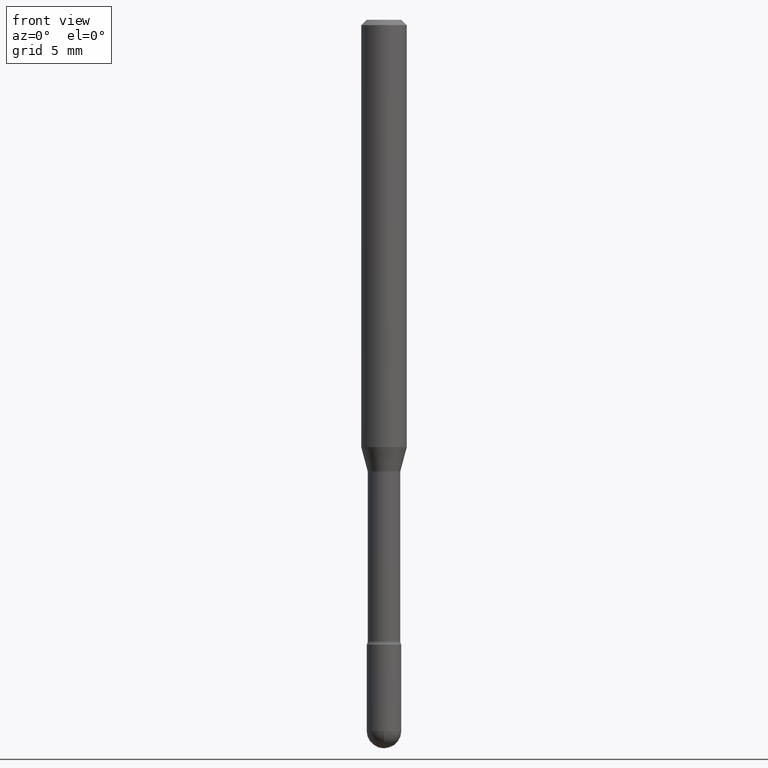
[diagram: clean part render]
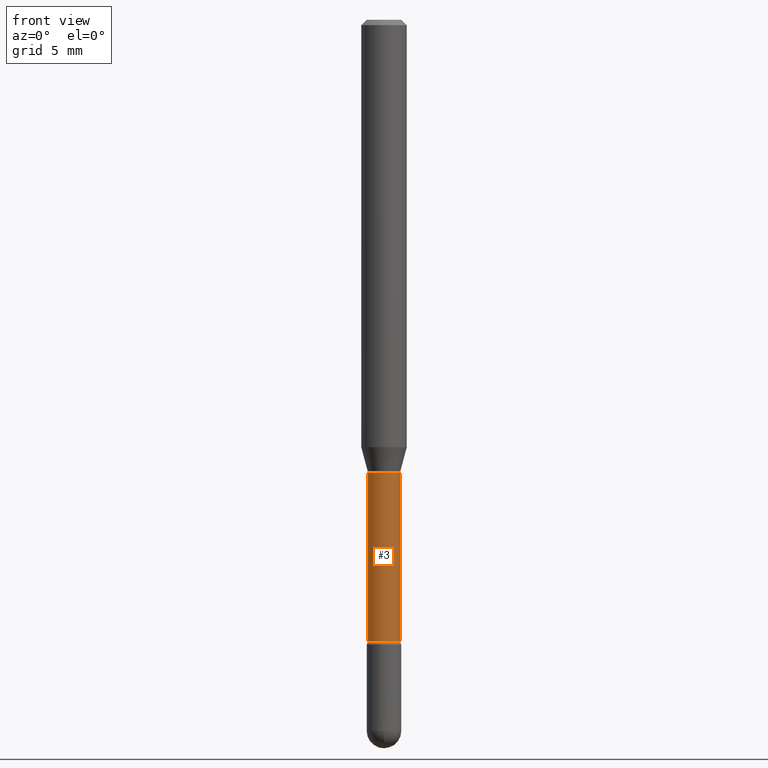
[diagram: same view with one face highlighted and labeled with its STEP entity id]
A machine part, front view. The second image highlights one B-rep face of the part: STEP entity #3.
In plain terms, the highlighted cylindrical surface (edge-blend (fillet) strip) has radius 1.1341 mm, axis along (-0, 0, 1).
Its self-contained STEP definition (entity closure, byte-faithful):
#3 = ADVANCED_FACE ( 'NONE', ( #472 ), #211, .T. ) ;
#15 = DIRECTION ( 'NONE',  ( -2.445468806185136877E-29, 3.491481338843145188E-15, 1.000000000000000000 ) ) ;
#25 = VERTEX_POINT ( 'NONE', #342 ) ;
#36 = VECTOR ( 'NONE', #460, 39.37007874015748143 ) ;
#37 = CARTESIAN_POINT ( 'NONE',  ( 3.037210600811164574E-29, -4.336331793743577757E-15, -1.241974787463810959 ) ) ;
#44 = LINE ( 'NONE', #200, #79 ) ;
#66 = ORIENTED_EDGE ( 'NONE', *, *, #250, .T. ) ;
#79 = VECTOR ( 'NONE', #15, 39.37007874015748143 ) ;
#82 = CIRCLE ( 'NONE', #565, 0.04465000000000005076 ) ;
#85 = CARTESIAN_POINT ( 'NONE',  ( -0.04464999999999999525, -4.829497496136509285E-15, -1.241974787463810959 ) ) ;
#90 = ORIENTED_EDGE ( 'NONE', *, *, #349, .F. ) ;
#134 = DIRECTION ( 'NONE',  ( -2.445468806185136597E-29, 3.491481338843145583E-15, 1.000000000000000000 ) ) ;
#140 = VERTEX_POINT ( 'NONE', #85 ) ;
#145 = CARTESIAN_POINT ( 'NONE',  ( 0.04464999999999999525, -4.648121077302269339E-15, -1.241974787463810959 ) ) ;
#168 = EDGE_CURVE ( 'NONE', #466, #25, #82, .T. ) ;
#190 = ORIENTED_EDGE ( 'NONE', *, *, #168, .T. ) ;
#200 = CARTESIAN_POINT ( 'NONE',  ( -0.04465000000000002994, 3.172573315168866221E-16, 4.780733988912438446E-16 ) ) ;
#211 = CYLINDRICAL_SURFACE ( 'NONE', #427, 0.04465000000000002994 ) ;
#216 = LINE ( 'NONE', #303, #36 ) ;
#250 = EDGE_CURVE ( 'NONE', #25, #401, #216, .T. ) ;
#278 = DIRECTION ( 'NONE',  ( -2.445468806185136597E-29, 3.491481338843145583E-15, 1.000000000000000000 ) ) ;
#303 = CARTESIAN_POINT ( 'NONE',  ( 0.04465000000000002994, -3.117892835586902995E-16, 4.780733988912482819E-16 ) ) ;
#306 = EDGE_CURVE ( 'NONE', #140, #401, #549, .T. ) ;
#342 = CARTESIAN_POINT ( 'NONE',  ( 0.04465000000000005076, -6.268967145121902976E-15, -1.706203551853162859 ) ) ;
#349 = EDGE_CURVE ( 'NONE', #466, #140, #44, .T. ) ;
#373 = DIRECTION ( 'NONE',  ( -2.445468806185136597E-29, 3.491481338843145583E-15, 1.000000000000000000 ) ) ;
#401 = VERTEX_POINT ( 'NONE', #145 ) ;
#404 = CARTESIAN_POINT ( 'NONE',  ( 4.172467563059193299E-29, -5.957177861563210606E-15, -1.706203551853162859 ) ) ;
#417 = CARTESIAN_POINT ( 'NONE',  ( -0.04465000000000005076, -5.645151613338136255E-15, -1.706203551853162859 ) ) ;
#418 = ORIENTED_EDGE ( 'NONE', *, *, #306, .F. ) ;
#427 = AXIS2_PLACEMENT_3D ( 'NONE', #429, #373, #520 ) ;
#429 = CARTESIAN_POINT ( 'NONE',  ( -1.169113584055446105E-44, 1.669184350826100908E-30, 4.780733988912460139E-16 ) ) ;
#460 = DIRECTION ( 'NONE',  ( -2.445468806185136877E-29, 3.491481338843145188E-15, 1.000000000000000000 ) ) ;
#463 = EDGE_LOOP ( 'NONE', ( #90, #190, #66, #418 ) ) ;
#466 = VERTEX_POINT ( 'NONE', #417 ) ;
#472 = FACE_OUTER_BOUND ( 'NONE', #463, .T. ) ;
#506 = AXIS2_PLACEMENT_3D ( 'NONE', #37, #134, #560 ) ;
#520 = DIRECTION ( 'NONE',  ( 1.000000000000000000, -6.982962677686266711E-15, 4.890776238491183623E-29 ) ) ;
#540 = DIRECTION ( 'NONE',  ( 1.000000000000000000, -6.982962677686271444E-15, 0.000000000000000000 ) ) ;
#549 = CIRCLE ( 'NONE', #506, 0.04464999999999999525 ) ;
#560 = DIRECTION ( 'NONE',  ( 1.000000000000000000, -6.982962677686269077E-15, 0.000000000000000000 ) ) ;
#565 = AXIS2_PLACEMENT_3D ( 'NONE', #404, #278, #540 ) ;